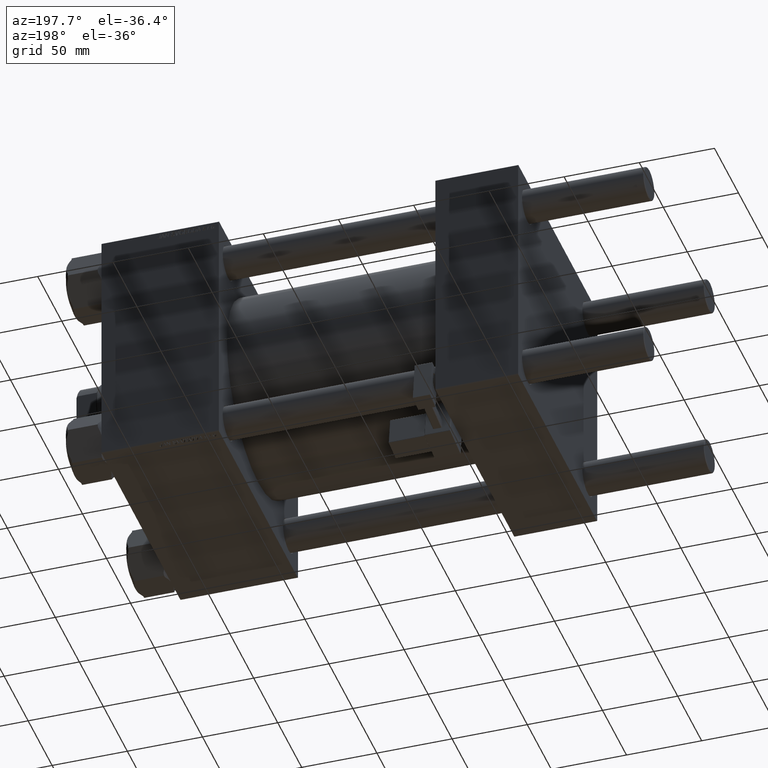
[diagram: clean part render]
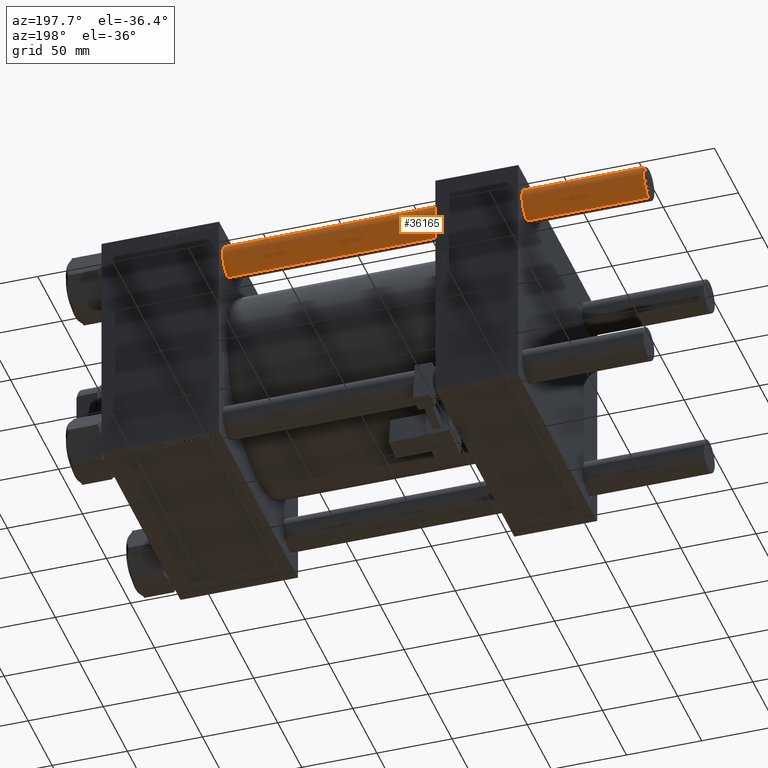
[diagram: same view with one face highlighted and labeled with its STEP entity id]
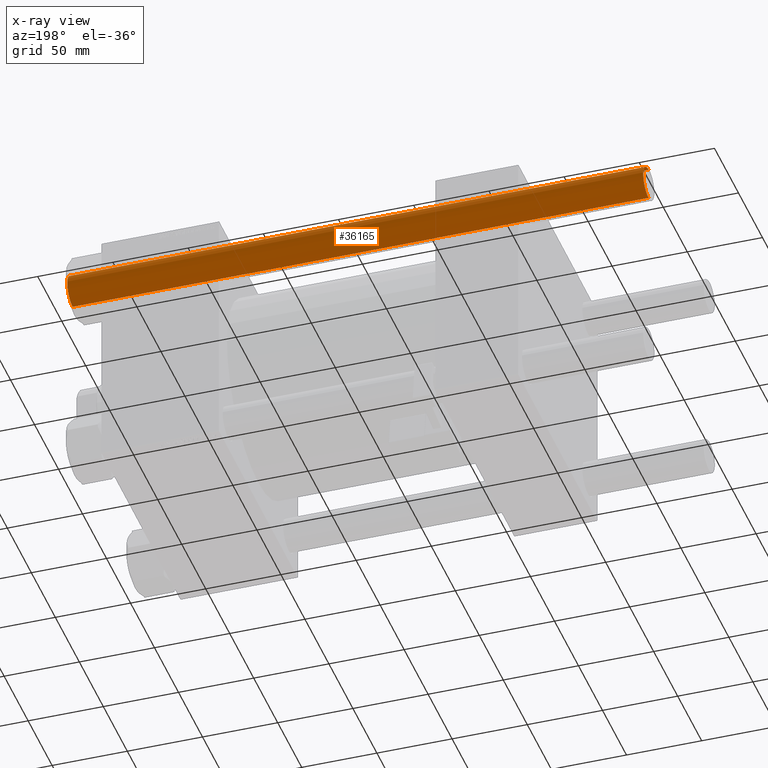
[diagram: x-ray of the same camera — body ghosted, the highlighted face saturated]
A machine part, auxiliary view. The second image highlights one B-rep face of the part: STEP entity #36165.
The next image is the same camera in x-ray: the body ghosted, the highlighted face saturated — about 0% of this face is hidden behind the body in this view.
In plain terms, the highlighted cylindrical surface (edge-blend (fillet) strip) has radius 11 mm, axis along (-1, -0, -0).
Its self-contained STEP definition (entity closure, byte-faithful):
#1342 = CARTESIAN_POINT ( 'NONE',  ( 0.000000000000000000, 0.000000000000000000, 0.4999999999999449329 ) ) ;
#1835 = CARTESIAN_POINT ( 'NONE',  ( -11.00000000000000000, 0.000000000000000000, 384.0000000000000000 ) ) ;
#3762 = CARTESIAN_POINT ( 'NONE',  ( 11.00000000000000000, 1.347111479062088405E-15, 384.0000000000000000 ) ) ;
#5313 = AXIS2_PLACEMENT_3D ( 'NONE', #18542, #42484, #5773 ) ;
#5773 = DIRECTION ( 'NONE',  ( -1.000000000000000000, 0.000000000000000000, 0.000000000000000000 ) ) ;
#7768 = DIRECTION ( 'NONE',  ( -0.000000000000000000, -0.000000000000000000, -1.000000000000000000 ) ) ;
#9076 = EDGE_LOOP ( 'NONE', ( #47486, #24162, #51303, #47706 ) ) ;
#10036 = EDGE_CURVE ( 'NONE', #29314, #30605, #22082, .T. ) ;
#15076 = VECTOR ( 'NONE', #51608, 1000.000000000000000 ) ;
#16102 = CIRCLE ( 'NONE', #41569, 11.00000000000000000 ) ;
#16498 = CIRCLE ( 'NONE', #46197, 11.00000000000000000 ) ;
#18542 = CARTESIAN_POINT ( 'NONE',  ( 0.000000000000000000, 0.000000000000000000, 384.0000000000000000 ) ) ;
#21070 = DIRECTION ( 'NONE',  ( 1.000000000000000000, 0.000000000000000000, 0.000000000000000000 ) ) ;
#21583 = DIRECTION ( 'NONE',  ( -0.000000000000000000, -0.000000000000000000, 1.000000000000000000 ) ) ;
#21748 = FACE_OUTER_BOUND ( 'NONE', #9076, .T. ) ;
#22082 = LINE ( 'NONE', #1835, #15076 ) ;
#24162 = ORIENTED_EDGE ( 'NONE', *, *, #24759, .T. ) ;
#24272 = LINE ( 'NONE', #3762, #43265 ) ;
#24759 = EDGE_CURVE ( 'NONE', #36386, #51701, #24272, .T. ) ;
#24930 = EDGE_CURVE ( 'NONE', #29314, #36386, #16102, .T. ) ;
#25620 = CARTESIAN_POINT ( 'NONE',  ( -11.00000000000000000, 0.000000000000000000, 383.5000000000000568 ) ) ;
#25824 = DIRECTION ( 'NONE',  ( 1.000000000000000000, 0.000000000000000000, 0.000000000000000000 ) ) ;
#29314 = VERTEX_POINT ( 'NONE', #25620 ) ;
#30067 = DIRECTION ( 'NONE',  ( 0.000000000000000000, 0.000000000000000000, -1.000000000000000000 ) ) ;
#30605 = VERTEX_POINT ( 'NONE', #33849 ) ;
#33849 = CARTESIAN_POINT ( 'NONE',  ( -11.00000000000000000, 0.000000000000000000, 0.4999999999999449329 ) ) ;
#36165 = ADVANCED_FACE ( 'NONE', ( #21748 ), #42744, .T. ) ;
#36386 = VERTEX_POINT ( 'NONE', #51527 ) ;
#39846 = EDGE_CURVE ( 'NONE', #51701, #30605, #16498, .T. ) ;
#41569 = AXIS2_PLACEMENT_3D ( 'NONE', #50045, #30067, #21070 ) ;
#42484 = DIRECTION ( 'NONE',  ( -0.000000000000000000, -0.000000000000000000, -1.000000000000000000 ) ) ;
#42744 = CYLINDRICAL_SURFACE ( 'NONE', #5313, 11.00000000000000000 ) ;
#43265 = VECTOR ( 'NONE', #7768, 1000.000000000000000 ) ;
#44775 = CARTESIAN_POINT ( 'NONE',  ( 11.00000000000000000, 1.347111479062088405E-15, 0.4999999999999449329 ) ) ;
#46197 = AXIS2_PLACEMENT_3D ( 'NONE', #1342, #21583, #25824 ) ;
#47486 = ORIENTED_EDGE ( 'NONE', *, *, #24930, .T. ) ;
#47706 = ORIENTED_EDGE ( 'NONE', *, *, #10036, .F. ) ;
#50045 = CARTESIAN_POINT ( 'NONE',  ( 0.000000000000000000, 0.000000000000000000, 383.5000000000000568 ) ) ;
#51303 = ORIENTED_EDGE ( 'NONE', *, *, #39846, .T. ) ;
#51527 = CARTESIAN_POINT ( 'NONE',  ( 11.00000000000000000, 1.347111479062088405E-15, 383.5000000000000568 ) ) ;
#51608 = DIRECTION ( 'NONE',  ( -0.000000000000000000, -0.000000000000000000, -1.000000000000000000 ) ) ;
#51701 = VERTEX_POINT ( 'NONE', #44775 ) ;